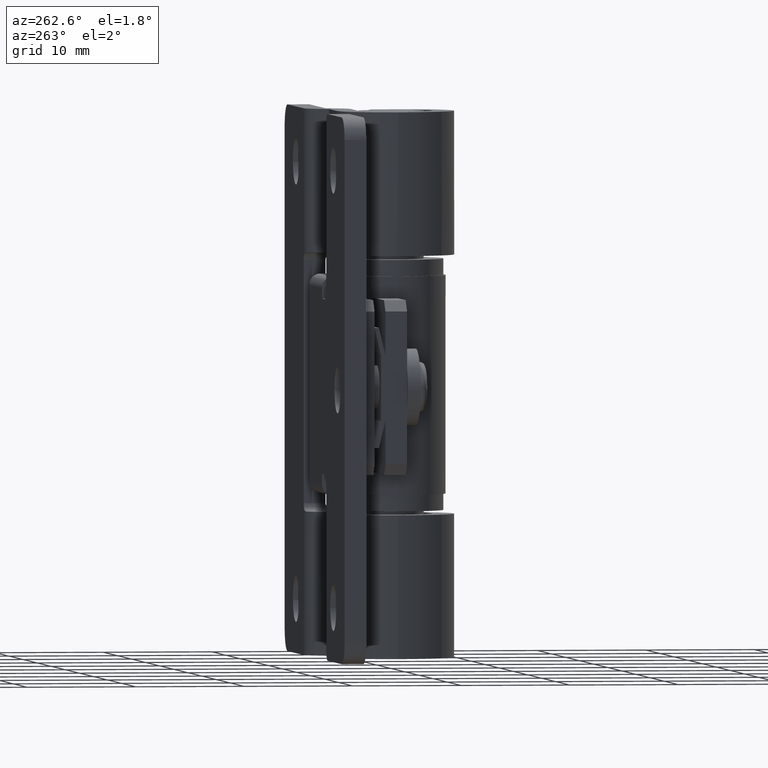
[diagram: clean part render]
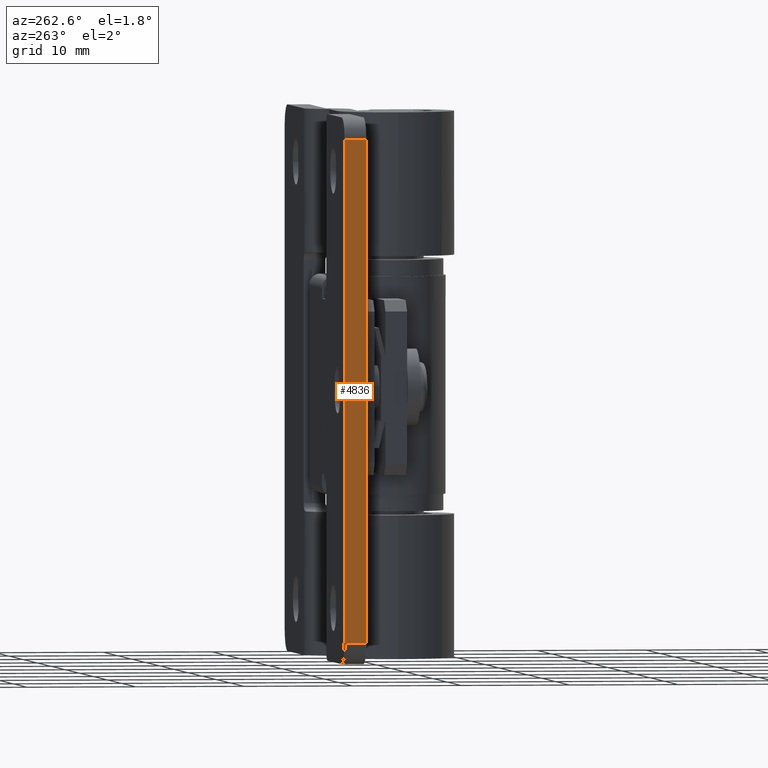
[diagram: same view with one face highlighted and labeled with its STEP entity id]
A machine part, auxiliary view. The second image highlights one B-rep face of the part: STEP entity #4836.
In plain terms, the highlighted face is a freeform B-spline surface patch.
Its self-contained STEP definition (entity closure, byte-faithful):
#4247=CARTESIAN_POINT('',(-21.0,5.0,2.0));
#4248=VERTEX_POINT('',#4247);
#4264=CARTESIAN_POINT('',(-21.0,7.0,2.0));
#4265=VERTEX_POINT('',#4264);
#4266=CARTESIAN_POINT('',(-21.0,7.0,2.0));
#4267=CARTESIAN_POINT('',(-21.0,5.0,2.0));
#4268=QUASI_UNIFORM_CURVE('',1,(#4266,#4267),.UNSPECIFIED.,.F.,.U.);
#4269=EDGE_CURVE('',#4265,#4248,#4268,.T.);
#4310=CARTESIAN_POINT('',(-21.0,5.0,48.0));
#4311=VERTEX_POINT('',#4310);
#4332=CARTESIAN_POINT('',(-21.0,7.0,48.0));
#4333=VERTEX_POINT('',#4332);
#4347=CARTESIAN_POINT('',(-21.0,5.0,48.0));
#4348=CARTESIAN_POINT('',(-21.0,7.0,48.0));
#4349=QUASI_UNIFORM_CURVE('',1,(#4347,#4348),.UNSPECIFIED.,.F.,.U.);
#4350=EDGE_CURVE('',#4311,#4333,#4349,.T.);
#4817=CARTESIAN_POINT('',(-21.0,4.900100003876388,50.297699910843093));
#4818=CARTESIAN_POINT('',(-21.0,4.900100003876388,-0.297701144659218));
#4819=CARTESIAN_POINT('',(-21.0,7.099900049767793,50.297699910843093));
#4820=CARTESIAN_POINT('',(-21.0,7.099900049767793,-0.297701144659218));
#4821=B_SPLINE_SURFACE_WITH_KNOTS('',1,1,((#4817,#4819),(#4818,#4820)),.UNSPECIFIED.,.F.,.F.,.U.,(2,2),(2,2),(0.0,50.595401055502307),(0.0,2.199800045891405),.UNSPECIFIED.);
#4822=CARTESIAN_POINT('',(-21.0,5.0,2.0));
#4823=CARTESIAN_POINT('',(-21.0,5.0,48.0));
#4824=QUASI_UNIFORM_CURVE('',1,(#4822,#4823),.UNSPECIFIED.,.F.,.U.);
#4825=EDGE_CURVE('',#4248,#4311,#4824,.T.);
#4826=ORIENTED_EDGE('',*,*,#4825,.T.);
#4827=ORIENTED_EDGE('',*,*,#4350,.T.);
#4828=CARTESIAN_POINT('',(-21.0,7.0,2.0));
#4829=CARTESIAN_POINT('',(-21.0,7.0,48.0));
#4830=QUASI_UNIFORM_CURVE('',1,(#4828,#4829),.UNSPECIFIED.,.F.,.U.);
#4831=EDGE_CURVE('',#4265,#4333,#4830,.T.);
#4832=ORIENTED_EDGE('',*,*,#4831,.F.);
#4833=ORIENTED_EDGE('',*,*,#4269,.T.);
#4834=EDGE_LOOP('',(#4826,#4827,#4832,#4833));
#4835=FACE_OUTER_BOUND('',#4834,.T.);
#4836=ADVANCED_FACE('',(#4835),#4821,.F.);